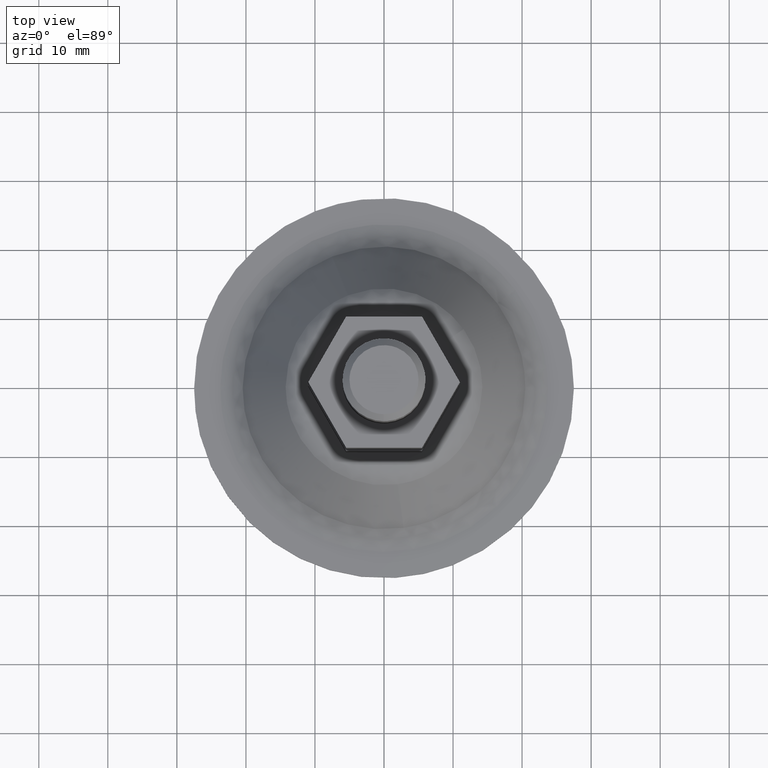
[diagram: clean part render]
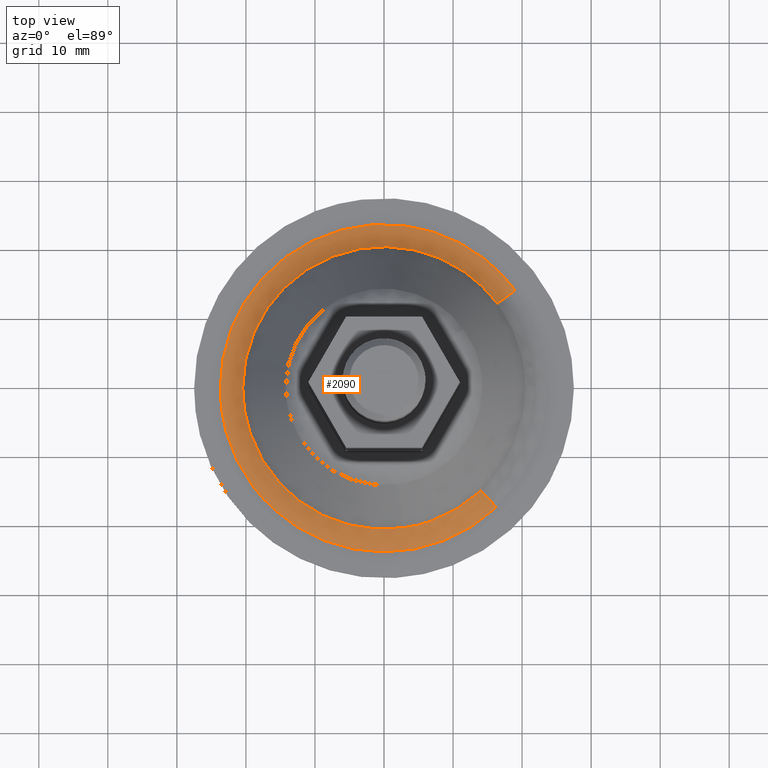
[diagram: same view with one face highlighted and labeled with its STEP entity id]
A machine part, top view. The second image highlights one B-rep face of the part: STEP entity #2090.
In plain terms, the highlighted face is a freeform B-spline surface patch.
Its self-contained STEP definition (entity closure, byte-faithful):
#1447=CARTESIAN_POINT('',(2.834919144541612,-20.270669623425619,3.667770002038476));
#1448=VERTEX_POINT('',#1447);
#1449=CARTESIAN_POINT('',(-20.467946000000001,0.0,3.667770000000105));
#1450=VERTEX_POINT('',#1449);
#1451=CARTESIAN_POINT('',(2.834919144541612,-20.270669623425622,3.667770002038477));
#1452=CARTESIAN_POINT('',(1.424323605861548,-20.467946000000005,3.667770000000105));
#1453=CARTESIAN_POINT('',(0.0,-20.467946000000001,3.667770000000105));
#1454=CARTESIAN_POINT('',(-20.467946000000001,-20.467946000000001,3.667770000000106));
#1455=CARTESIAN_POINT('',(-20.467946000000001,0.0,3.667770000000105));
#1463=(BOUNDED_CURVE()B_SPLINE_CURVE(2,(#1451,#1452,#1453,#1454,#1455),.UNSPECIFIED.,.F.,.U.)B_SPLINE_CURVE_WITH_KNOTS((3,2,3),(0.726086221409637,0.750000000000000,1.0),.UNSPECIFIED.)CURVE()GEOMETRIC_REPRESENTATION_ITEM()RATIONAL_B_SPLINE_CURVE((0.949326419172312,0.971983265658705,1.0,0.707106781186547,1.0))REPRESENTATION_ITEM(''));
#1464=EDGE_CURVE('',#1448,#1450,#1463,.T.);
#1505=CARTESIAN_POINT('',(-7.501527317564008,19.043736538896351,3.667769999995381));
#1506=VERTEX_POINT('',#1505);
#1512=CARTESIAN_POINT('',(-20.467946000000001,0.0,3.667770000000105));
#1513=CARTESIAN_POINT('',(-20.467946000000008,13.936128388615094,3.667770000000105));
#1514=CARTESIAN_POINT('',(-7.501527317564008,19.043736538896351,3.667769999995380));
#1522=(BOUNDED_CURVE()B_SPLINE_CURVE(2,(#1512,#1513,#1514),.UNSPECIFIED.,.F.,.U.)B_SPLINE_CURVE_WITH_KNOTS((3,3),(0.0,0.187769642892033),.UNSPECIFIED.)CURVE()GEOMETRIC_REPRESENTATION_ITEM()RATIONAL_B_SPLINE_CURVE((1.0,0.780014179591600,0.890481630698369))REPRESENTATION_ITEM(''));
#1523=EDGE_CURVE('',#1450,#1506,#1522,.T.);
#1550=CARTESIAN_POINT('',(14.050391366120380,-14.883659558347031,3.667770103519775));
#1551=VERTEX_POINT('',#1550);
#1552=CARTESIAN_POINT('',(14.050391366120378,-14.883659558347022,3.667770103519775));
#1553=CARTESIAN_POINT('',(9.301978441843163,-19.366230347611925,3.667770020423347));
#1554=CARTESIAN_POINT('',(2.834919144541612,-20.270669623425619,3.667770002038476));
#1562=(BOUNDED_CURVE()B_SPLINE_CURVE(2,(#1552,#1553,#1554),.UNSPECIFIED.,.F.,.U.)B_SPLINE_CURVE_WITH_KNOTS((3,3),(0.629344514439731,0.726086221409636),.UNSPECIFIED.)CURVE()GEOMETRIC_REPRESENTATION_ITEM()RATIONAL_B_SPLINE_CURVE((0.853730296276504,0.857669553011812,0.949326419172310))REPRESENTATION_ITEM(''));
#1563=EDGE_CURVE('',#1551,#1448,#1562,.T.);
#1580=CARTESIAN_POINT('',(16.406429877904479,12.237886993036611,3.667770103417435));
#1581=VERTEX_POINT('',#1580);
#1595=CARTESIAN_POINT('',(-7.501527317564008,19.043736538896351,3.667769999995380));
#1596=CARTESIAN_POINT('',(-3.885960966178959,20.467946000000008,3.667770000000105));
#1597=CARTESIAN_POINT('',(0.0,20.467946000000001,3.667770000000105));
#1598=CARTESIAN_POINT('',(10.267462668709454,20.467946000000008,3.667770000000105));
#1599=CARTESIAN_POINT('',(16.406429877904479,12.237886993036611,3.667770103417436));
#1607=(BOUNDED_CURVE()B_SPLINE_CURVE(2,(#1595,#1596,#1597,#1598,#1599),.UNSPECIFIED.,.F.,.U.)B_SPLINE_CURVE_WITH_KNOTS((3,2,3),(0.187769642892033,0.250000000000000,0.396843395504642),.UNSPECIFIED.)CURVE()GEOMETRIC_REPRESENTATION_ITEM()RATIONAL_B_SPLINE_CURVE((0.890481630698369,0.927092601594947,1.0,0.827962260916594,0.858025367928780))REPRESENTATION_ITEM(''));
#1608=EDGE_CURVE('',#1506,#1581,#1607,.T.);
#1987=CARTESIAN_POINT('',(16.405776289490081,-17.378736141767178,2.004119559770407));
#1988=CARTESIAN_POINT('',(15.399099572882557,-18.329053407290843,2.004119559770407));
#1989=CARTESIAN_POINT('',(14.289428316434652,-19.156779581532884,2.004119559770408));
#1990=CARTESIAN_POINT('',(-4.867351265098234,-33.446207897967540,2.004119559770407));
#1991=CARTESIAN_POINT('',(-19.156779581532884,-14.289428316434652,2.004119559770408));
#1992=CARTESIAN_POINT('',(-33.446207897967540,4.867351265098233,2.004119559770407));
#1993=CARTESIAN_POINT('',(-14.289428316434652,19.156779581532884,2.004119559770408));
#1994=CARTESIAN_POINT('',(4.867351265098233,33.446207897967554,2.004119559770407));
#1995=CARTESIAN_POINT('',(19.156779581532884,14.289428316434662,2.004119559770408));
#1996=CARTESIAN_POINT('',(14.837020421085141,-15.716943744578176,1.900321956848006));
#1997=CARTESIAN_POINT('',(13.926604312869332,-16.576389614513449,1.900321956848007));
#1998=CARTESIAN_POINT('',(12.923042225828311,-17.324966818882828,1.900321956848005));
#1999=CARTESIAN_POINT('',(-4.401924593054519,-30.248009044711146,1.900321956848005));
#2000=CARTESIAN_POINT('',(-17.324966818882828,-12.923042225828311,1.900321956848005));
#2001=CARTESIAN_POINT('',(-30.248009044711146,4.401924593054519,1.900321956848005));
#2002=CARTESIAN_POINT('',(-12.923042225828311,17.324966818882828,1.900321956848005));
#2003=CARTESIAN_POINT('',(4.401924593054516,30.248009044711146,1.900321956848005));
#2004=CARTESIAN_POINT('',(17.324966818882828,12.923042225828311,1.900321956848005));
#2005=CARTESIAN_POINT('',(13.980145791904778,-14.809251366946535,3.817398717397503));
#2006=CARTESIAN_POINT('',(13.122308465882906,-15.619062112025144,3.817398717397503));
#2007=CARTESIAN_POINT('',(12.176704571712646,-16.324407131211622,3.817398717397502));
#2008=CARTESIAN_POINT('',(-4.147702559498967,-28.501111702924277,3.817398717397502));
#2009=CARTESIAN_POINT('',(-16.324407131211622,-12.176704571712646,3.817398717397502));
#2010=CARTESIAN_POINT('',(-28.501111702924277,4.147702559498966,3.817398717397502));
#2011=CARTESIAN_POINT('',(-12.176704571712659,16.324407131211622,3.817398717397502));
#2012=CARTESIAN_POINT('',(4.147702559498964,28.501111702924277,3.817398717397502));
#2013=CARTESIAN_POINT('',(16.324407131211622,12.176704571712659,3.817398717397502));
#2021=(BOUNDED_SURFACE()B_SPLINE_SURFACE(2,2,((#1987,#1996,#2005),(#1988,#1997,#2006),(#1989,#1998,#2007),(#1990,#1999,#2008),(#1991,#2000,#2009),(#1992,#2001,#2010),(#1993,#2002,#2011),(#1994,#2003,#2012),(#1995,#2004,#2013)),.UNSPECIFIED.,.F.,.F.,.U.)B_SPLINE_SURFACE_WITH_KNOTS((3,2,2,2,3),(3,3),(0.0,3.167791287386891,42.765220142773920,82.362648998160950,121.960077853548000),(0.0,4.252147185758799),.UNSPECIFIED.)GEOMETRIC_REPRESENTATION_ITEM()RATIONAL_B_SPLINE_SURFACE(((0.884520655512478,0.768407639776256,0.885876845392710),(0.902714562178246,0.784213191395911,0.904098647836772),(0.924373970941110,0.803029320858459,0.925791265853476),(0.653631103204796,0.567827478270644,0.654633282048271),(0.924373970941110,0.803029320858459,0.925791265853476),(0.653631103204796,0.567827478270644,0.654633282048271),(0.924373970941110,0.803029320858459,0.925791265853476),(0.653631103204796,0.567827478270644,0.654633282048271),(0.924373970941110,0.803029320858459,0.925791265853476)))REPRESENTATION_ITEM('')SURFACE());
#2022=CARTESIAN_POINT('',(16.281191255436919,-17.246758580306061,2.000000000000001));
#2023=VERTEX_POINT('',#2022);
#2024=CARTESIAN_POINT('',(-23.717669999999998,0.0,2.0));
#2025=VERTEX_POINT('',#2024);
#2026=CARTESIAN_POINT('',(16.281191255436930,-17.246758580306064,2.000000000000001));
#2027=CARTESIAN_POINT('',(9.426517951969796,-23.717669999999998,2.0));
#2028=CARTESIAN_POINT('',(0.0,-23.717669999999998,2.0));
#2029=CARTESIAN_POINT('',(-23.717669999999995,-23.717669999999995,2.0));
#2030=CARTESIAN_POINT('',(-23.717669999999998,0.0,2.0));
#2038=(BOUNDED_CURVE()B_SPLINE_CURVE(2,(#2026,#2027,#2028,#2029,#2030),.UNSPECIFIED.,.F.,.U.)B_SPLINE_CURVE_WITH_KNOTS((3,2,3),(0.629344514439752,0.750000000000000,1.0),.UNSPECIFIED.)CURVE()GEOMETRIC_REPRESENTATION_ITEM()RATIONAL_B_SPLINE_CURVE((0.853730296276506,0.858643305867036,1.0,0.707106781186547,1.0))REPRESENTATION_ITEM(''));
#2039=EDGE_CURVE('',#2023,#2025,#2038,.T.);
#2040=ORIENTED_EDGE('',*,*,#2039,.F.);
#2041=CARTESIAN_POINT('',(16.281191255436916,-17.246758580306061,2.000000000000001));
#2042=CARTESIAN_POINT('',(14.872019533724208,-15.754014953549863,2.000000000117348));
#2043=CARTESIAN_POINT('',(14.050391366120374,-14.883659558347032,3.667770103519775));
#2051=(BOUNDED_CURVE()B_SPLINE_CURVE(2,(#2041,#2042,#2043),.UNSPECIFIED.,.F.,.U.)B_SPLINE_CURVE_WITH_KNOTS((3,3),(-1.605258366394057,-0.386961543592648),.UNSPECIFIED.)CURVE()GEOMETRIC_REPRESENTATION_ITEM()RATIONAL_B_SPLINE_CURVE((0.874456204738876,0.778533618263395,0.875689209350665))REPRESENTATION_ITEM(''));
#2052=EDGE_CURVE('',#2023,#1551,#2051,.T.);
#2053=ORIENTED_EDGE('',*,*,#2052,.T.);
#2054=ORIENTED_EDGE('',*,*,#1563,.T.);
#2055=ORIENTED_EDGE('',*,*,#1464,.T.);
#2056=ORIENTED_EDGE('',*,*,#1523,.T.);
#2057=ORIENTED_EDGE('',*,*,#1608,.T.);
#2058=CARTESIAN_POINT('',(19.011301229928531,14.180913079423700,2.000000000000001));
#2059=VERTEX_POINT('',#2058);
#2060=CARTESIAN_POINT('',(19.011301229928524,14.180913079423711,2.000000000000001));
#2061=CARTESIAN_POINT('',(17.365832685053832,12.953524899743002,2.000000000165479));
#2062=CARTESIAN_POINT('',(16.406429877904479,12.237886993036609,3.667770103417435));
#2070=(BOUNDED_CURVE()B_SPLINE_CURVE(2,(#2060,#2061,#2062),.UNSPECIFIED.,.F.,.U.)B_SPLINE_CURVE_WITH_KNOTS((3,3),(-1.605258366362798,-0.386961543676735),.UNSPECIFIED.)CURVE()GEOMETRIC_REPRESENTATION_ITEM()RATIONAL_B_SPLINE_CURVE((0.913856088107361,0.813611571400585,0.915144647508380))REPRESENTATION_ITEM(''));
#2071=EDGE_CURVE('',#2059,#1581,#2070,.T.);
#2072=ORIENTED_EDGE('',*,*,#2071,.F.);
#2073=CARTESIAN_POINT('',(-23.717669999999998,0.0,2.0));
#2074=CARTESIAN_POINT('',(-23.717669999999995,23.717669999999995,2.0));
#2075=CARTESIAN_POINT('',(0.0,23.717669999999998,2.0));
#2076=CARTESIAN_POINT('',(11.897641869586977,23.717669999999998,2.000000000000000));
#2077=CARTESIAN_POINT('',(19.011301229928527,14.180913079423698,2.000000000000001));
#2085=(BOUNDED_CURVE()B_SPLINE_CURVE(2,(#2073,#2074,#2075,#2076,#2077),.UNSPECIFIED.,.F.,.U.)B_SPLINE_CURVE_WITH_KNOTS((3,2,3),(0.0,0.250000000000000,0.396843395504780),.UNSPECIFIED.)CURVE()GEOMETRIC_REPRESENTATION_ITEM()RATIONAL_B_SPLINE_CURVE((1.0,0.707106781186547,1.0,0.827962260916433,0.858025367928837))REPRESENTATION_ITEM(''));
#2086=EDGE_CURVE('',#2025,#2059,#2085,.T.);
#2087=ORIENTED_EDGE('',*,*,#2086,.F.);
#2088=EDGE_LOOP('',(#2040,#2053,#2054,#2055,#2056,#2057,#2072,#2087));
#2089=FACE_OUTER_BOUND('',#2088,.T.);
#2090=ADVANCED_FACE('',(#2089),#2021,.F.);